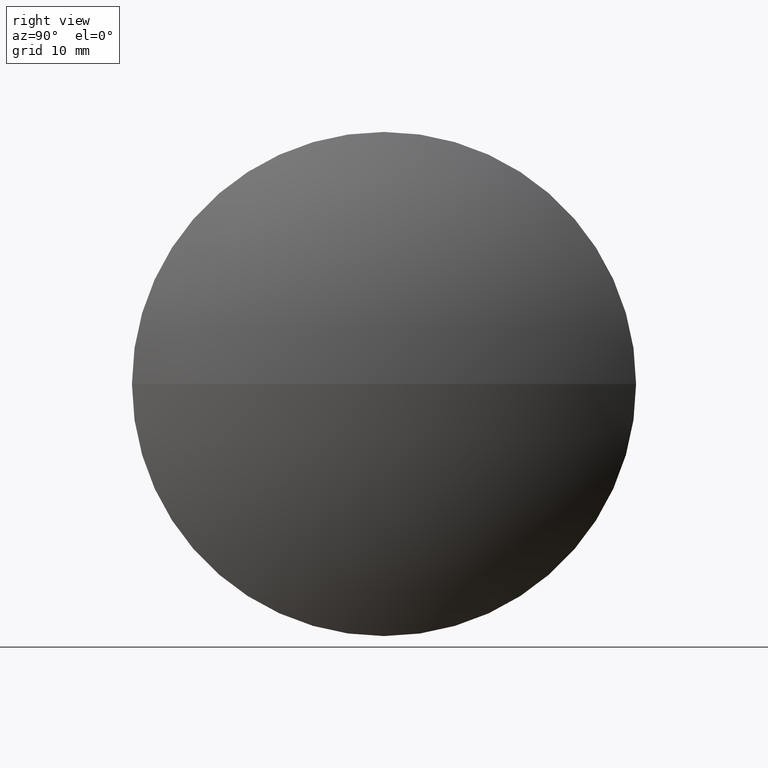
[diagram: clean part render]
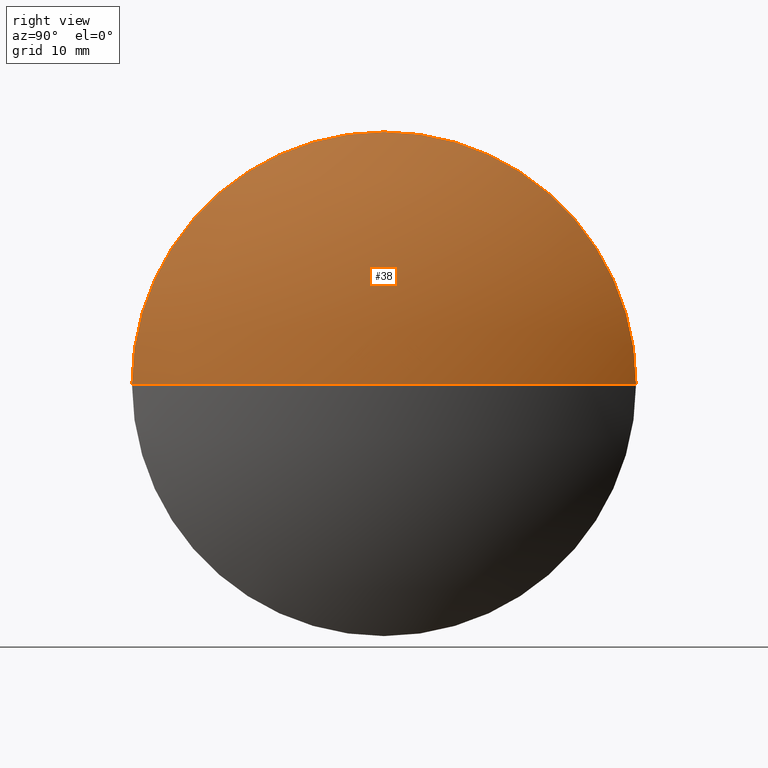
[diagram: same view with one face highlighted and labeled with its STEP entity id]
A machine part, right view. The second image highlights one B-rep face of the part: STEP entity #38.
In plain terms, the highlighted spherical surface has radius 61.3822 mm.
Its self-contained STEP definition (entity closure, byte-faithful):
#1 = VERTEX_POINT ( 'NONE', #78 ) ;
#9 = CARTESIAN_POINT ( 'NONE',  ( 215.9444092659714400, 120.5837547940985100, 0.0000000000000000000 ) ) ;
#15 = CIRCLE ( 'NONE', #44, 31.50012600050371200 ) ;
#20 = FACE_OUTER_BOUND ( 'NONE', #135, .T. ) ;
#28 = DIRECTION ( 'NONE',  ( -0.0000000000000000000, 0.0000000000000000000, 1.000000000000000000 ) ) ;
#38 = ADVANCED_FACE ( 'NONE', ( #20 ), #74, .T. ) ;
#44 = AXIS2_PLACEMENT_3D ( 'NONE', #9, #253, #260 ) ;
#58 = CARTESIAN_POINT ( 'NONE',  ( 215.9444092659714400, 152.0838807946021800, 0.0000000000000000000 ) ) ;
#74 = SPHERICAL_SURFACE ( 'NONE', #194, 61.38224783524788800 ) ;
#78 = CARTESIAN_POINT ( 'NONE',  ( 215.9444092659714400, 120.5837547940985100, 31.50012600050371200 ) ) ;
#99 = EDGE_CURVE ( 'NONE', #157, #207, #177, .T. ) ;
#107 = AXIS2_PLACEMENT_3D ( 'NONE', #224, #28, #321 ) ;
#135 = EDGE_LOOP ( 'NONE', ( #179, #173, #169, #153 ) ) ;
#142 = DIRECTION ( 'NONE',  ( 0.0000000000000000000, 0.0000000000000000000, 1.000000000000000000 ) ) ;
#147 = CARTESIAN_POINT ( 'NONE',  ( 163.2611822268066500, 120.5837547940984100, 0.0000000000000000000 ) ) ;
#153 = ORIENTED_EDGE ( 'NONE', *, *, #188, .F. ) ;
#154 = AXIS2_PLACEMENT_3D ( 'NONE', #147, #327, #278 ) ;
#157 = VERTEX_POINT ( 'NONE', #306 ) ;
#169 = ORIENTED_EDGE ( 'NONE', *, *, #282, .F. ) ;
#173 = ORIENTED_EDGE ( 'NONE', *, *, #99, .T. ) ;
#177 = CIRCLE ( 'NONE', #107, 61.38224783524790200 ) ;
#179 = ORIENTED_EDGE ( 'NONE', *, *, #277, .F. ) ;
#188 = EDGE_CURVE ( 'NONE', #245, #1, #15, .T. ) ;
#191 = CARTESIAN_POINT ( 'NONE',  ( 163.2611822268066500, 120.5837547940984100, 0.0000000000000000000 ) ) ;
#193 = DIRECTION ( 'NONE',  ( -0.0000000000000000000, 0.0000000000000000000, -1.000000000000000000 ) ) ;
#194 = AXIS2_PLACEMENT_3D ( 'NONE', #191, #193, #196 ) ;
#196 = DIRECTION ( 'NONE',  ( 0.0000000000000000000, 1.000000000000000000, 0.0000000000000000000 ) ) ;
#205 = AXIS2_PLACEMENT_3D ( 'NONE', #304, #303, #142 ) ;
#207 = VERTEX_POINT ( 'NONE', #58 ) ;
#224 = CARTESIAN_POINT ( 'NONE',  ( 163.2611822268066500, 120.5837547940984100, 0.0000000000000000000 ) ) ;
#237 = CARTESIAN_POINT ( 'NONE',  ( 215.9444092659714400, 89.08362879359474100, -3.857652847925513700E-015 ) ) ;
#245 = VERTEX_POINT ( 'NONE', #237 ) ;
#253 = DIRECTION ( 'NONE',  ( -1.000000000000000000, -0.0000000000000000000, -0.0000000000000000000 ) ) ;
#260 = DIRECTION ( 'NONE',  ( 0.0000000000000000000, 0.0000000000000000000, 1.000000000000000000 ) ) ;
#277 = EDGE_CURVE ( 'NONE', #157, #245, #342, .T. ) ;
#278 = DIRECTION ( 'NONE',  ( 0.0000000000000000000, 1.000000000000000000, 1.224646799147352700E-016 ) ) ;
#282 = EDGE_CURVE ( 'NONE', #1, #207, #328, .T. ) ;
#303 = DIRECTION ( 'NONE',  ( -1.000000000000000000, -0.0000000000000000000, -0.0000000000000000000 ) ) ;
#304 = CARTESIAN_POINT ( 'NONE',  ( 215.9444092659714400, 120.5837547940985100, 0.0000000000000000000 ) ) ;
#306 = CARTESIAN_POINT ( 'NONE',  ( 224.6434300620545600, 120.5837547940984100, 0.0000000000000000000 ) ) ;
#321 = DIRECTION ( 'NONE',  ( 1.000000000000000000, 0.0000000000000000000, 0.0000000000000000000 ) ) ;
#327 = DIRECTION ( 'NONE',  ( 0.0000000000000000000, 1.224646799147353200E-016, -1.000000000000000000 ) ) ;
#328 = CIRCLE ( 'NONE', #205, 31.50012600050371200 ) ;
#342 = CIRCLE ( 'NONE', #154, 61.38224783524790200 ) ;